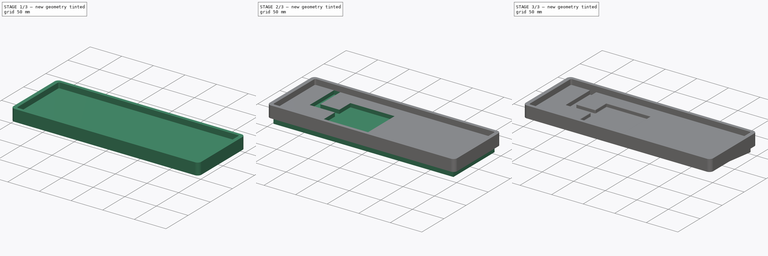
[diagram: build sequence overview — one tinted view per stage of 3, left to right]
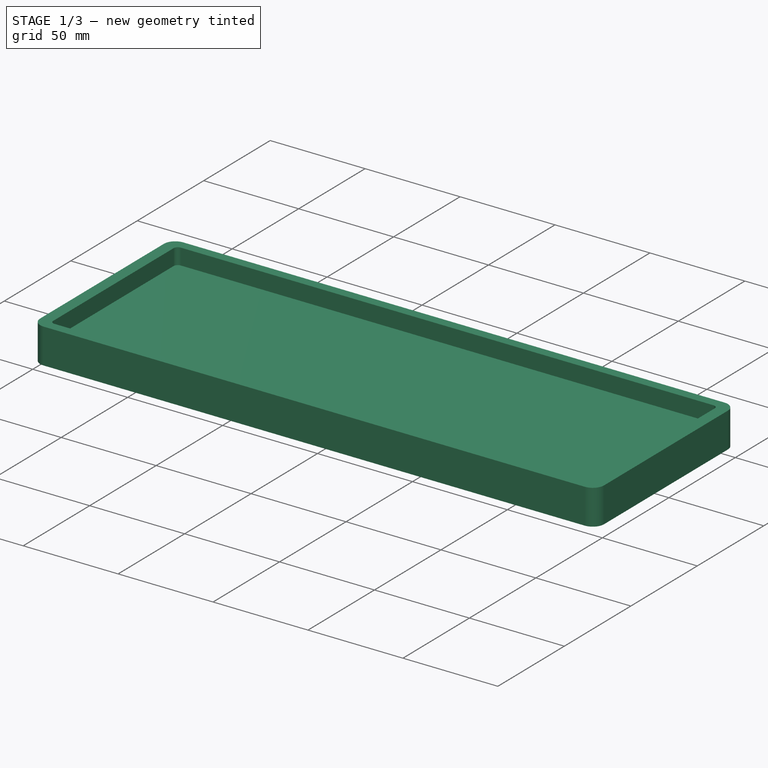
[diagram: stage 1 of 3 — iso view after this stage's code; geometry added in this stage tinted green]
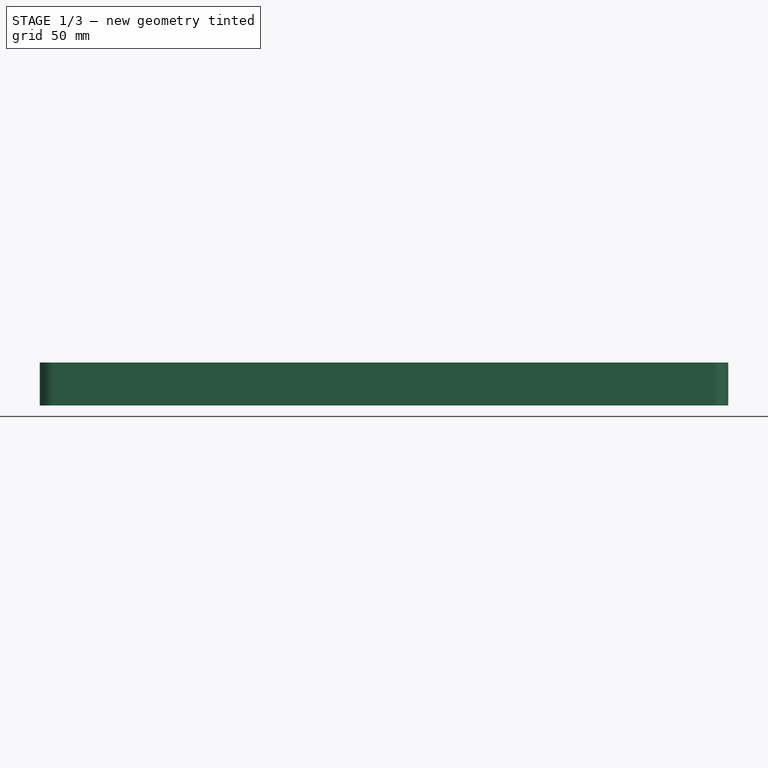
[diagram: stage 1 of 3 — front view after this stage's code; geometry added in this stage tinted green]
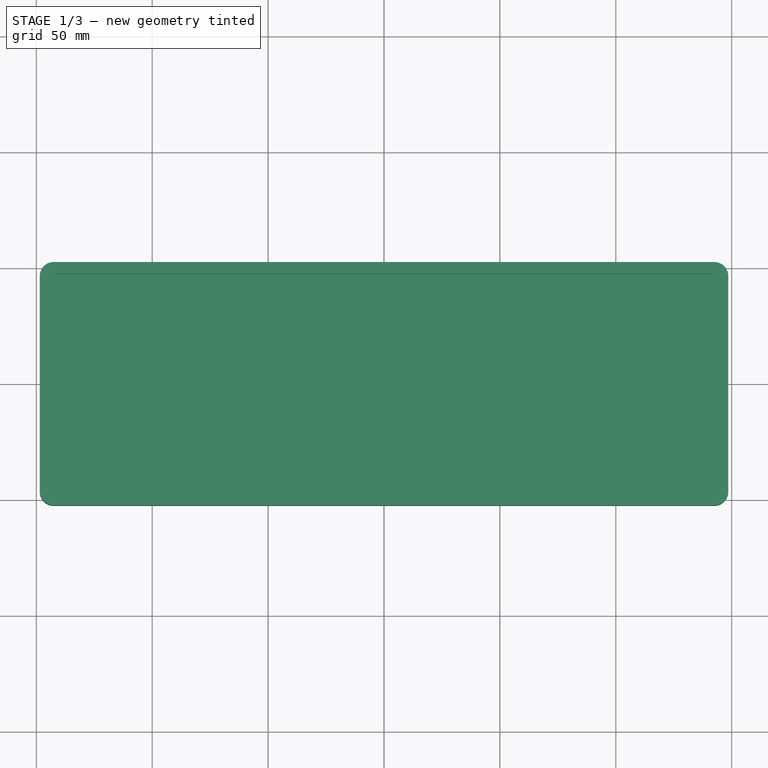
[diagram: stage 1 of 3 — top view after this stage's code; geometry added in this stage tinted green]
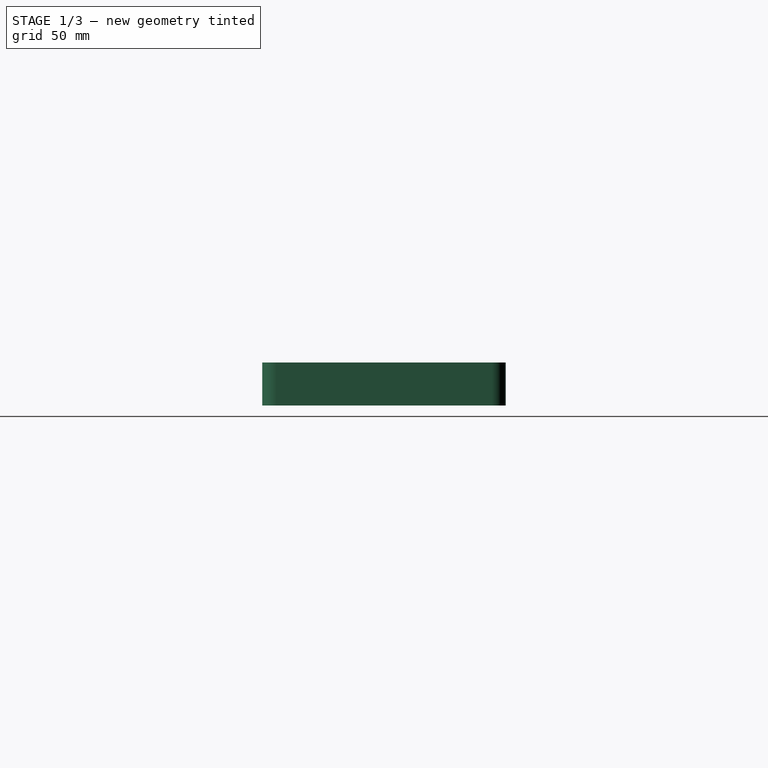
[diagram: stage 1 of 3 — right view after this stage's code; geometry added in this stage tinted green]
FCSTD DOCUMENT  (FreeCAD 0.21R33668 +7 (Git))
Label: Keyboard_60
License: All rights reserved
LicenseURL: https://en.wikipedia.org/wiki/All_rights_reserved
objects: Sketcher::SketchObject×5, PartDesign::Pocket×3, PartDesign::Pad×2, PartDesign::Fillet×1, PartDesign::Body×1
note: 18 computed .brp shape members not serialized (recipe doc carries the construction recipe); baked Part::Feature solids carry a one-line shape summary decoded from their .brp

FEATURE [Sketcher::SketchObject] Sketch
  FullyConstrained = true
  MapMode = 5
  Support = -> [XY_Plane]
  sketch-geometry (13):
    g0: LineSegment StartX=148.5 StartY=-46.5 StartZ=0 EndX=148.5 EndY=46.5 EndZ=0
    g1: LineSegment StartX=142.5 StartY=52.5 StartZ=0 EndX=-142.5 EndY=52.5 EndZ=0
    g2: LineSegment StartX=-148.5 StartY=46.5 StartZ=0 EndX=-148.5 EndY=-46.5 EndZ=0
    g3: LineSegment StartX=-142.5 StartY=-52.5 StartZ=0 EndX=142.5 EndY=-52.5 EndZ=0
    g4: GeomPoint X=0 Y=0 Z=0
    g5: ArcOfCircle CenterX=-142.5 CenterY=46.5 CenterZ=0 NormalX=0 NormalY=0 NormalZ=1 AngleXU=0 Radius=6 StartAngle=1.5708 EndAngle=3.14159
    g6: GeomPoint X=-148.5 Y=52.5 Z=0
    g7: ArcOfCircle CenterX=142.5 CenterY=46.5 CenterZ=0 NormalX=0 NormalY=0 NormalZ=1 AngleXU=0 Radius=6 StartAngle=-9e-16 EndAngle=1.5708
    g8: GeomPoint X=148.5 Y=52.5 Z=0
    g9: ArcOfCircle CenterX=142.5 CenterY=-46.5 CenterZ=0 NormalX=0 NormalY=0 NormalZ=1 AngleXU=0 Radius=6 StartAngle=4.71239 EndAngle=6.28319
    g10: GeomPoint X=148.5 Y=-52.5 Z=0
    g11: ArcOfCircle CenterX=-142.5 CenterY=-46.5 CenterZ=0 NormalX=0 NormalY=0 NormalZ=1 AngleXU=0 Radius=6 StartAngle=3.14159 EndAngle=4.71239
    g12: GeomPoint X=-148.5 Y=-52.5 Z=0
  constraints (28):
    c: Horizontal(g1)
    c: Horizontal(g3)
    c: Vertical(g0)
    c: Vertical(g2)
    c: Symmetric(g6,g10,g4)
    c: Coincident(g4,g-1)
    c: DistanceX(g6,g8) = 297
    c: DistanceY(g12,g6) = 105
    c: PointOnObject(g6,g1)
    c: PointOnObject(g6,g2)
    c: Tangent(g1,g5) = -1.5708
    c: Tangent(g2,g5) = -1.5708
    c: PointOnObject(g8,g1)
    c: PointOnObject(g8,g0)
    c: Tangent(g1,g7) = -1.5708
    c: Tangent(g0,g7) = -1.5708
    c: PointOnObject(g10,g0)
    c: PointOnObject(g10,g3)
    c: Tangent(g0,g9) = -1.5708
    c: Tangent(g3,g9) = -1.5708
    c: PointOnObject(g12,g2)
    c: PointOnObject(g12,g3)
    c: Tangent(g2,g11) = -1.5708
    c: Tangent(g3,g11) = -1.5708
    c: Diameter(g11) = 12
    c: Equal(g11,g5)
    c: Equal(g5,g7)
    c: Equal(g7,g9)
FEATURE [PartDesign::Pad] Pad
  Direction = (0,0,1)
  Length = 18.5
  Length2 = 10
  Profile = -> Sketch
  ReferenceAxis = -> Sketch [N_Axis]
  Type = 0
FEATURE [Sketcher::SketchObject] Sketch001
  FullyConstrained = true
  MapMode = 5
  Placement = pos=(0,0,18.5) rot=(0,0,1;0rad)
  Support = -> [Pad]
  sketch-geometry (13):
    g0: LineSegment StartX=142.5 StartY=-45.25 StartZ=0 EndX=142.5 EndY=45.25 EndZ=0
    g1: LineSegment StartX=140.25 StartY=47.5 StartZ=0 EndX=-140.25 EndY=47.5 EndZ=0
    g2: LineSegment StartX=-142.5 StartY=45.25 StartZ=0 EndX=-142.5 EndY=-45.25 EndZ=0
    g3: LineSegment StartX=-140.25 StartY=-47.5 StartZ=0 EndX=140.25 EndY=-47.5 EndZ=0
    g4: GeomPoint X=0 Y=0 Z=0
    g5: ArcOfCircle CenterX=-140.25 CenterY=45.25 CenterZ=0 NormalX=0 NormalY=0 NormalZ=1 AngleXU=0 Radius=2.25 StartAngle=1.5708 EndAngle=3.14159
    g6: GeomPoint X=-142.5 Y=47.5 Z=0
    g7: ArcOfCircle CenterX=140.25 CenterY=45.25 CenterZ=0 NormalX=0 NormalY=0 NormalZ=1 AngleXU=0 Radius=2.25 StartAngle=-6.688e-13 EndAngle=1.5708
    g8: GeomPoint X=142.5 Y=47.5 Z=0
    g9: ArcOfCircle CenterX=140.25 CenterY=-45.25 CenterZ=0 NormalX=0 NormalY=0 NormalZ=1 AngleXU=0 Radius=2.25 StartAngle=4.71239 EndAngle=6.28319
    g10: GeomPoint X=142.5 Y=-47.5 Z=0
    g11: ArcOfCircle CenterX=-140.25 CenterY=-45.25 CenterZ=0 NormalX=0 NormalY=0 NormalZ=1 AngleXU=0 Radius=2.25 StartAngle=3.14159 EndAngle=4.71239
    g12: GeomPoint X=-142.5 Y=-47.5 Z=0
  constraints (28):
    c: Horizontal(g1)
    c: Horizontal(g3)
    c: Vertical(g0)
    c: Vertical(g2)
    c: Symmetric(g6,g10,g4)
    c: Coincident(g4,g-1)
    c: DistanceX(g6,g8) = 285
    c: DistanceY(g12,g6) = 95
    c: PointOnObject(g6,g1)
    c: PointOnObject(g6,g2)
    c: Tangent(g1,g5) = -1.5708
    c: Tangent(g2,g5) = -1.5708
    c: PointOnObject(g8,g1)
    c: PointOnObject(g8,g0)
    c: Tangent(g1,g7) = -1.5708
    c: Tangent(g0,g7) = -1.5708
    c: PointOnObject(g10,g0)
    c: PointOnObject(g10,g3)
    c: Tangent(g0,g9) = -1.5708
    c: Tangent(g3,g9) = -1.5708
    c: PointOnObject(g12,g2)
    c: PointOnObject(g12,g3)
    c: Tangent(g2,g11) = -1.5708
    c: Tangent(g3,g11) = -1.5708
    c: Diameter(g5) = 4.5
    c: Equal(g5,g11)
    c: Equal(g11,g9)
    c: Equal(g9,g7)
FEATURE [PartDesign::Pocket] Pocket
  BaseFeature = -> Pad
  Direction = (0,0,-1)
  Length = 8.5
  Length2 = 5
  Profile = -> Sketch001
  ReferenceAxis = -> Sketch001 [N_Axis]
  Type = 0
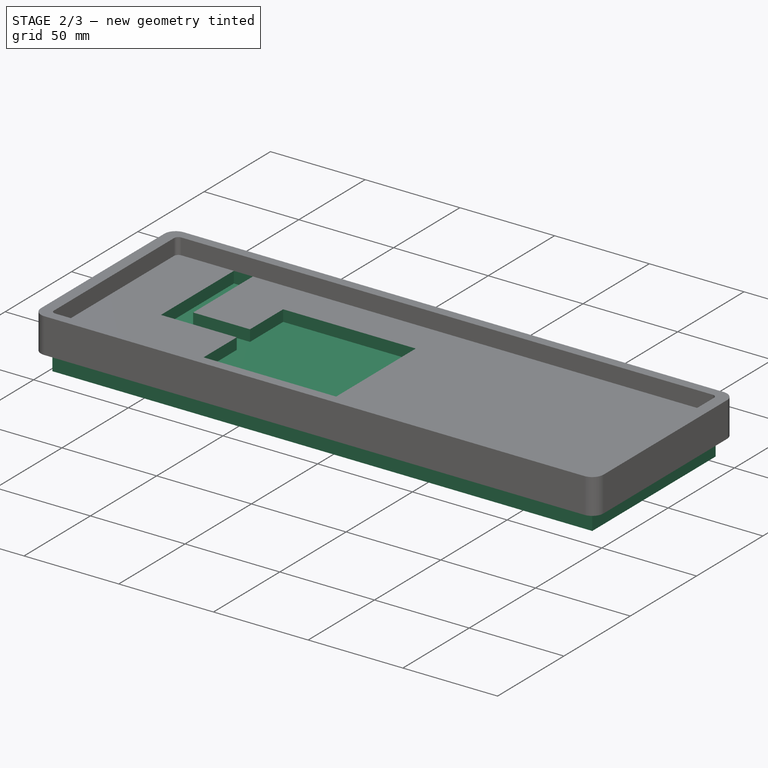
[diagram: stage 2 of 3 — iso view after this stage's code; geometry added in this stage tinted green]
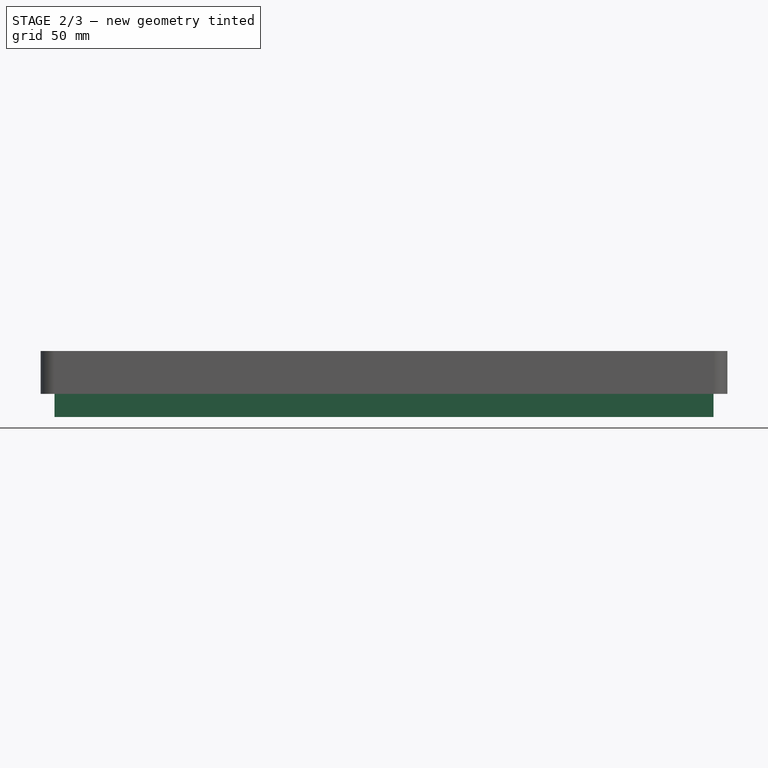
[diagram: stage 2 of 3 — front view after this stage's code; geometry added in this stage tinted green]
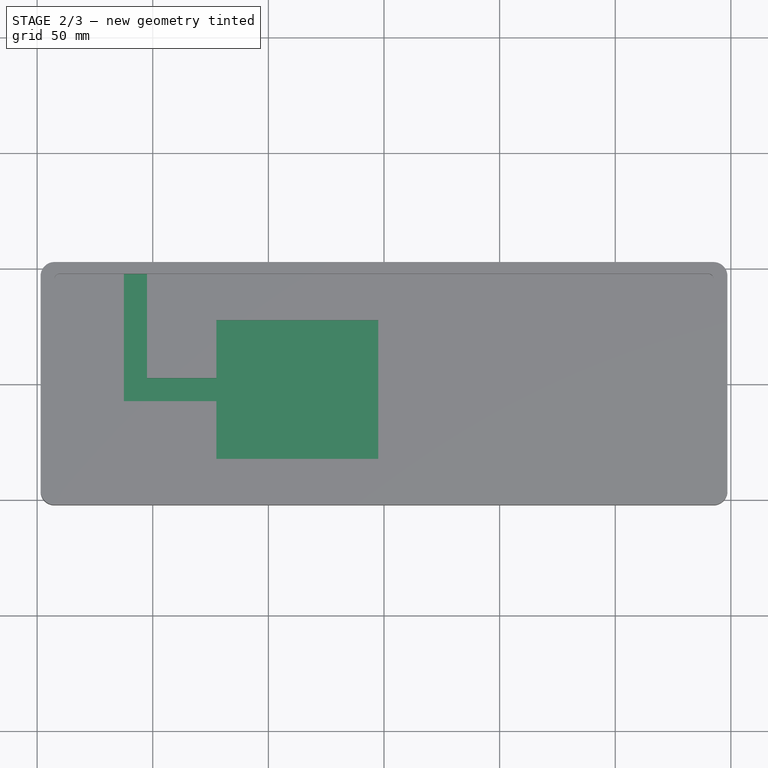
[diagram: stage 2 of 3 — top view after this stage's code; geometry added in this stage tinted green]
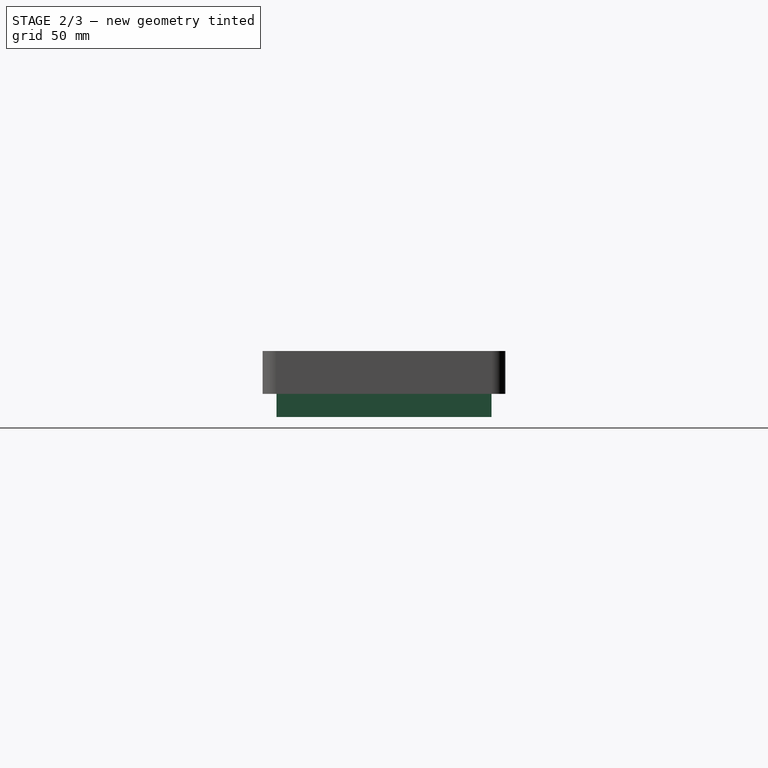
[diagram: stage 2 of 3 — right view after this stage's code; geometry added in this stage tinted green]
FEATURE [Sketcher::SketchObject] Sketch003
  ExternalGeometry = -> [Pocket]
  FullyConstrained = true
  MapMode = 5
  Placement = pos=(0,0,10) rot=(0,0,1;0rad)
  Support = -> [Pocket]
  sketch-geometry (10):
    g0: LineSegment StartX=-102.5 StartY=47.5 StartZ=0 EndX=-102.5 EndY=2.5 EndZ=0
    g1: LineSegment StartX=-102.5 StartY=2.5 StartZ=0 EndX=-72.5 EndY=2.5 EndZ=0
    g2: LineSegment StartX=-72.5 StartY=2.5 StartZ=0 EndX=-72.5 EndY=27.5 EndZ=0
    g3: LineSegment StartX=-72.5 StartY=27.5 StartZ=0 EndX=-2.5 EndY=27.5 EndZ=0
    g4: LineSegment StartX=-2.5 StartY=27.5 StartZ=0 EndX=-2.5 EndY=-32.5 EndZ=0
    g5: LineSegment StartX=-2.5 StartY=-32.5 StartZ=0 EndX=-72.5 EndY=-32.5 EndZ=0
    g6: LineSegment StartX=-112.5 StartY=-7.5 StartZ=0 EndX=-112.5 EndY=47.5 EndZ=0
    g7: LineSegment StartX=-72.5 StartY=-32.5 StartZ=0 EndX=-72.5 EndY=-7.5 EndZ=0
    g8: LineSegment StartX=-112.5 StartY=-7.5 StartZ=0 EndX=-72.5 EndY=-7.5 EndZ=0
    g9: LineSegment StartX=-112.5 StartY=47.5 StartZ=0 EndX=-102.5 EndY=47.5 EndZ=0
  constraints (31):
    c: PointOnObject(g0,g-3)
    c: Vertical(g0)
    c: Coincident(g0,g1)
    c: Horizontal(g1)
    c: Coincident(g1,g2)
    c: Vertical(g2)
    c: Coincident(g2,g3)
    c: Horizontal(g3)
    c: Coincident(g3,g4)
    c: Vertical(g4)
    c: Coincident(g4,g5)
    c: Horizontal(g5)
    c: PointOnObject(g6,g-3)
    c: Vertical(g6)
    c: DistanceX(g3,g3) = 70
    c: DistanceY(g4,g4) = 60
    c: DistanceY(g2,g-5) = 20
    c: DistanceX(g-5,g1) = 70
    c: DistanceY(g0,g0) = 45
    c: DistanceX(g6,g0) = 10
    c: Coincident(g5,g7)
    c: Vertical(g7)
    c: DistanceX(g5,g5) = 70
    c: DistanceX(g1,g1) = 30
    c: Coincident(g6,g8)
    c: Coincident(g8,g7)
    c: Horizontal(g8)
    c: DistanceY(g7,g7) = 25
    c: Coincident(g6,g9)
    c: PointOnObject(g9,g0)
    c: Horizontal(g9)
FEATURE [PartDesign::Pocket] Pocket001
  BaseFeature = -> Pocket
  Direction = (0,0,-1)
  Length = 6
  Length2 = 5
  Profile = -> Sketch003
  ReferenceAxis = -> Sketch003 [N_Axis]
  Type = 0
FEATURE [Sketcher::SketchObject] Sketch004
  FullyConstrained = true
  MapMode = 5
  Placement = pos=(0,0,0) rot=(1,0,0;3.14159rad)
  sketch-geometry (5):
    g0: LineSegment StartX=142.5 StartY=-46.5 StartZ=0 EndX=142.5 EndY=46.5 EndZ=0
    g1: LineSegment StartX=142.5 StartY=46.5 StartZ=0 EndX=-142.5 EndY=46.5 EndZ=0
    g2: LineSegment StartX=-142.5 StartY=46.5 StartZ=0 EndX=-142.5 EndY=-46.5 EndZ=0
    g3: LineSegment StartX=-142.5 StartY=-46.5 StartZ=0 EndX=142.5 EndY=-46.5 EndZ=0
    g4: GeomPoint X=0 Y=0 Z=0
  constraints (12):
    c: Coincident(g0,g1)
    c: Coincident(g1,g2)
    c: Coincident(g2,g3)
    c: Coincident(g3,g0)
    c: Horizontal(g1)
    c: Horizontal(g3)
    c: Vertical(g0)
    c: Vertical(g2)
    c: Symmetric(g1,g0,g4)
    c: Coincident(g4,g-1)
    c: DistanceX(g1,g1) = 285
    c: DistanceY(g2,g2) = 93
FEATURE [PartDesign::Pad] Pad001
  BaseFeature = -> Pocket001
  Direction = (0,0,-1)
  Length = 10
  Length2 = 10
  Profile = -> Sketch004
  ReferenceAxis = -> Sketch004 [N_Axis]
  Type = 0
  UseCustomVector = true
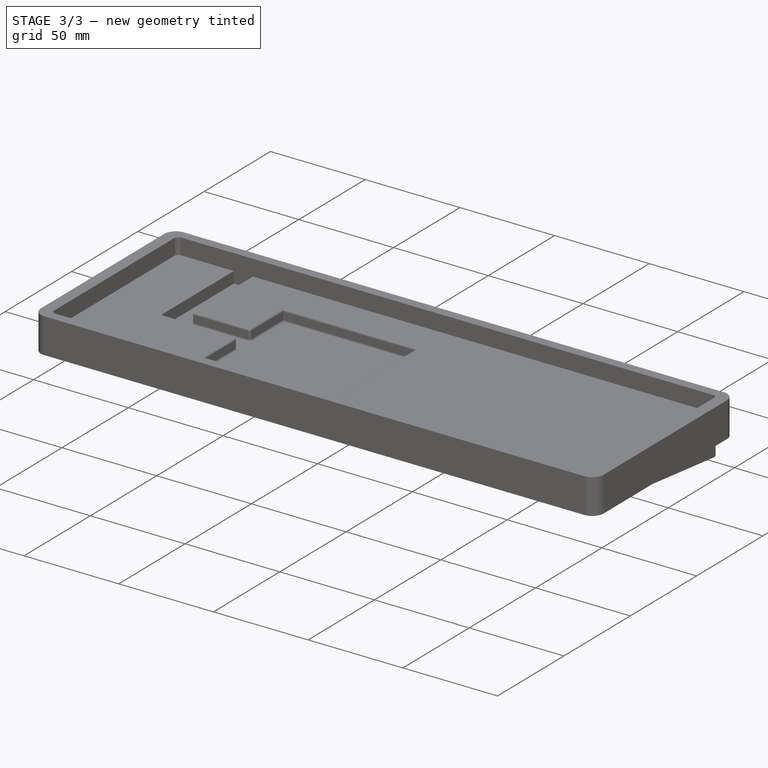
[diagram: stage 3 of 3 — iso view after this stage's code; geometry added in this stage tinted green]
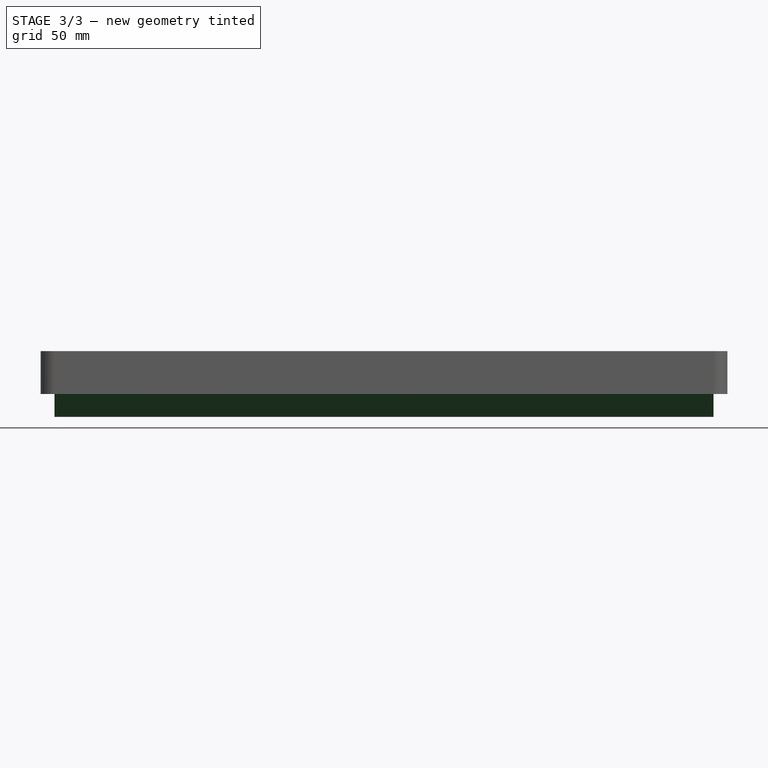
[diagram: stage 3 of 3 — front view after this stage's code; geometry added in this stage tinted green]
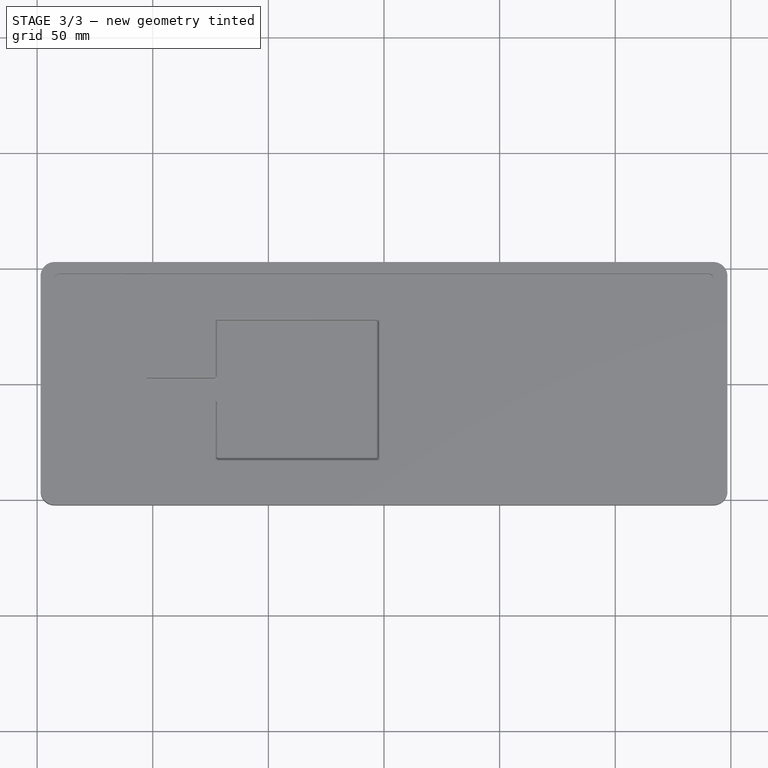
[diagram: stage 3 of 3 — top view after this stage's code; geometry added in this stage tinted green]
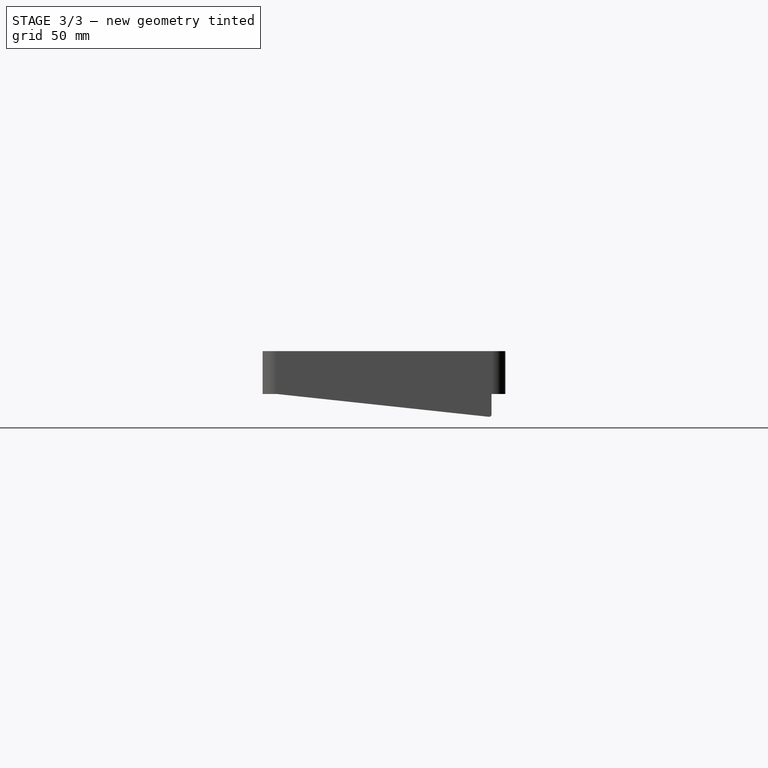
[diagram: stage 3 of 3 — right view after this stage's code; geometry added in this stage tinted green]
FEATURE [Sketcher::SketchObject] Sketch005  label="stand"
  ExternalGeometry = -> [Pad001]
  FullyConstrained = true
  MapMode = 5
  Placement = pos=(142.5,0,0) rot=(0.57735,0.57735,0.57735;2.0944rad)
  Support = -> [Pad001]
  sketch-geometry (3):
    g0: LineSegment StartX=-46.5 StartY=0 StartZ=0 EndX=46.5 EndY=-10 EndZ=0
    g1: LineSegment StartX=46.5 StartY=-10 StartZ=0 EndX=-46.5 EndY=-10 EndZ=0
    g2: LineSegment StartX=-46.5 StartY=-10 StartZ=0 EndX=-46.5 EndY=0 EndZ=0
  constraints (6):
    c: Coincident(g0,g-3)
    c: Coincident(g0,g-4)
    c: Coincident(g0,g1)
    c: Coincident(g1,g-5)
    c: Coincident(g1,g2)
    c: Coincident(g2,g0)
FEATURE [PartDesign::Pocket] Pocket002
  BaseFeature = -> Pad001
  Direction = (-1,0,0)
  Length = 2
  Length2 = 5
  Profile = -> Sketch005
  ReferenceAxis = -> Sketch005 [N_Axis]
  Type = 1
FEATURE [PartDesign::Fillet] Fillet006
  Base = -> Pocket002 [Edge160]
  BaseFeature = -> Pocket002
  Radius = 1
  SupportTransform = false
  UseAllEdges = false
FEATURE [PartDesign::Body] Body
  Group = -> [Sketch,Pad,Sketch001,Pocket,Sketch003,Pocket001,Sketch004,Pad001,Sketch005,Pocket002,Fillet006]
  Origin = -> Origin
  Tip = -> Fillet006
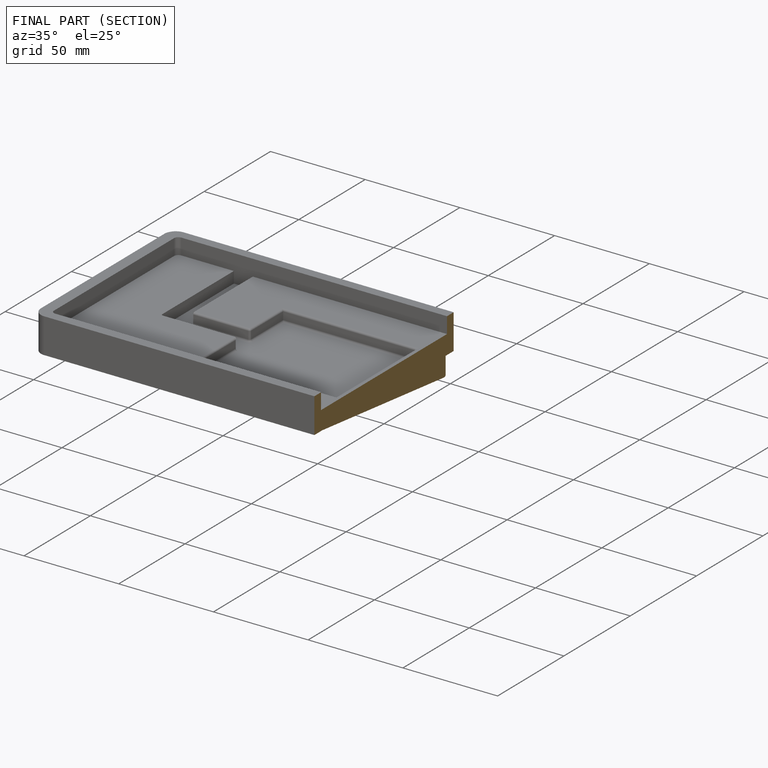
[diagram: finished part — half-section view (interior)]
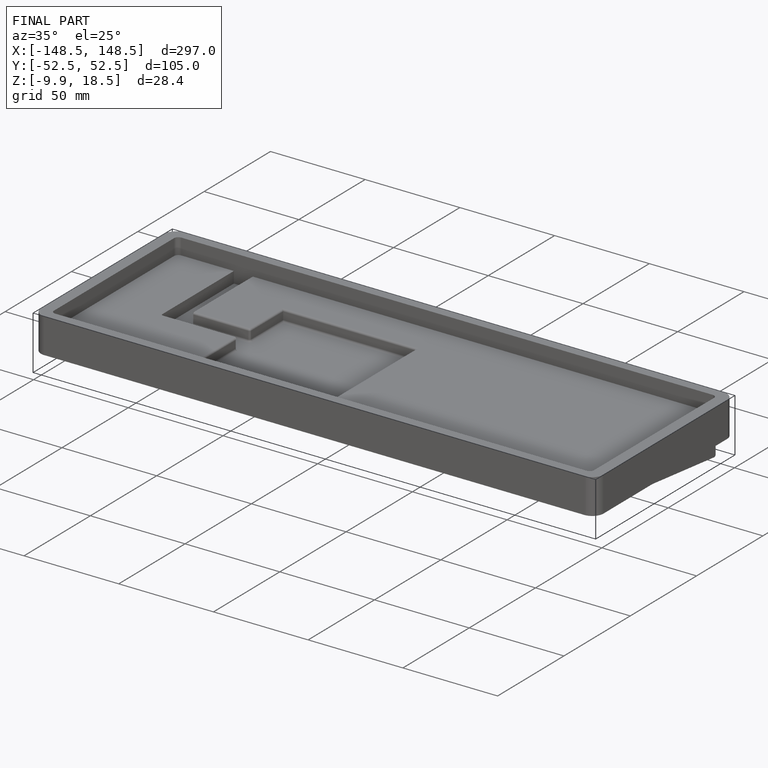
[diagram: finished part — iso view with bounding-box wireframe]
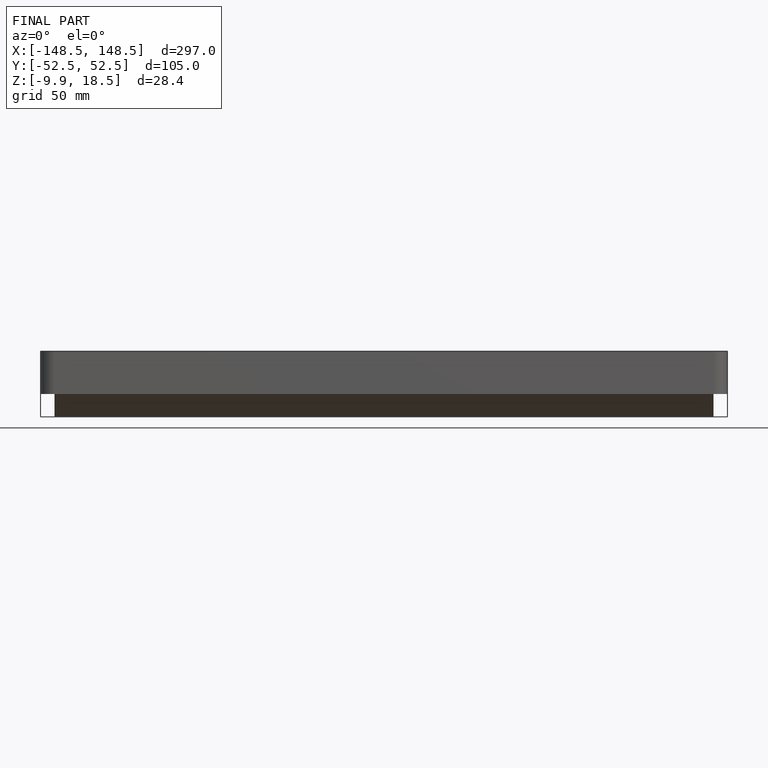
[diagram: finished part — front view with bounding-box wireframe]
